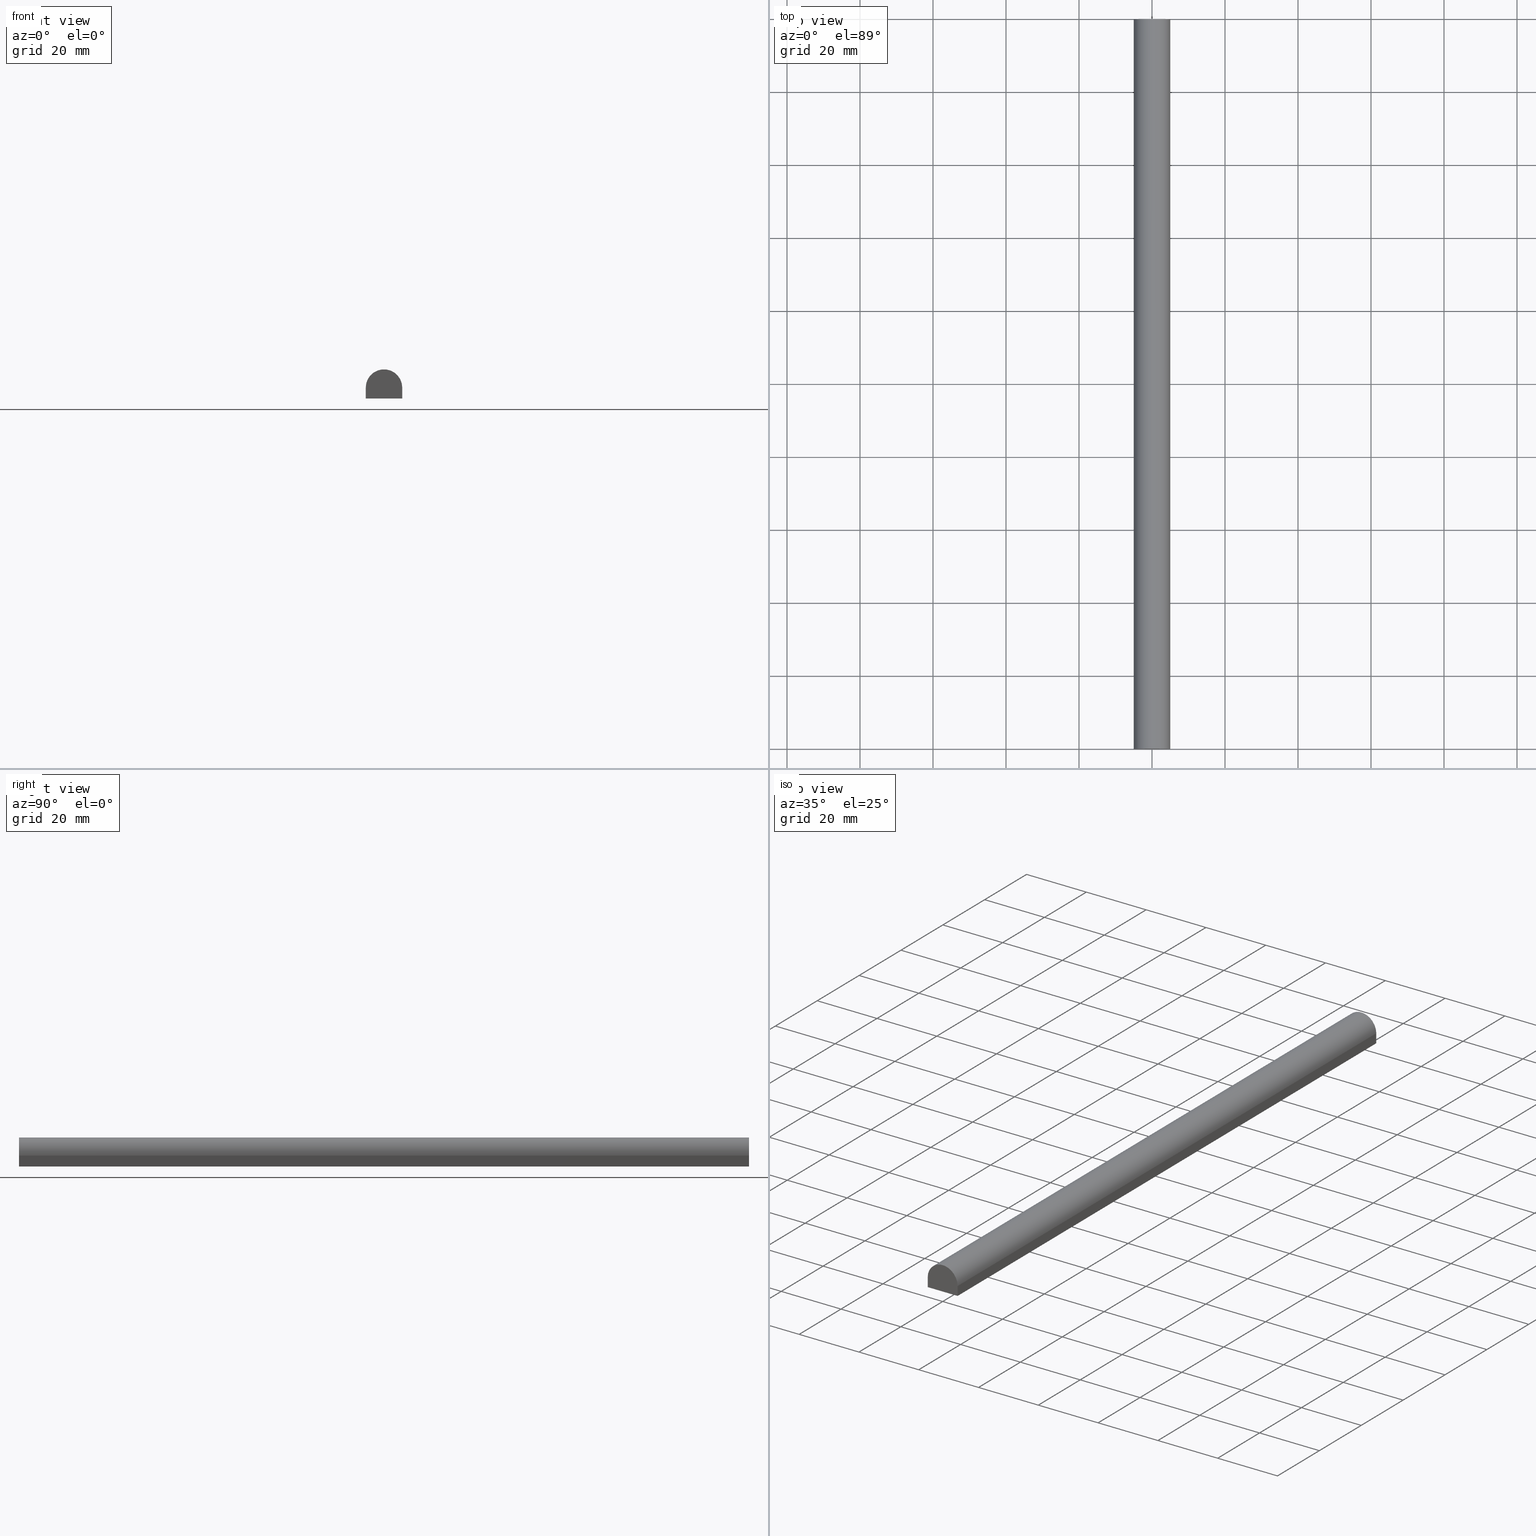
[diagram: canonical four-view strip — front | top / right | iso, engineering-drawing reading convention]
A machine part, canonical four-view strip (front | top / right | iso — engineering-drawing reading convention). The complete STEP part file that produces these views, byte-faithful:
ISO-10303-21;
HEADER;
FILE_DESCRIPTION (( 'STEP AP214' ),
    '1' );
FILE_NAME ('TM_341_3.STEP',
    '2016-05-10T02:33:44',
    ( '' ),
    ( '' ),
    'SwSTEP 2.0',
    'SolidWorks 2015',
    '' );
FILE_SCHEMA (( 'AUTOMOTIVE_DESIGN' ));
ENDSEC;

DATA;
#1 = ORIENTED_EDGE ( 'NONE', *, *, #151, .F. ) ;
#2 = ADVANCED_FACE ( 'NONE', ( #11 ), #168, .T. ) ;
#3 = AXIS2_PLACEMENT_3D ( 'NONE', #64, #158, #101 ) ;
#4 =( REPRESENTATION_RELATIONSHIP ('NONE','NONE', #48, #126 ) REPRESENTATION_RELATIONSHIP_WITH_TRANSFORMATION ( #17 )SHAPE_REPRESENTATION_RELATIONSHIP( ) );
#5 = PLANE ( 'NONE',  #154 ) ;
#6 = AXIS2_PLACEMENT_3D ( 'NONE', #142, #215, #182 ) ;
#7 = PRODUCT_DEFINITION_CONTEXT ( 'detailed design', #221, 'design' ) ;
#8 = APPLICATION_CONTEXT ( 'automotive_design' ) ;
#9 = AXIS2_PLACEMENT_3D ( 'NONE', #24, #125, #222 ) ;
#10 = PRODUCT_DEFINITION_CONTEXT ( 'detailed design', #181, 'design' ) ;
#11 = FACE_OUTER_BOUND ( 'NONE', #231, .T. ) ;
#12 =( LENGTH_UNIT ( ) NAMED_UNIT ( * ) SI_UNIT ( .MILLI., .METRE. ) );
#13 = PLANE ( 'NONE',  #3 ) ;
#14 =( NAMED_UNIT ( * ) SI_UNIT ( $, .STERADIAN. ) SOLID_ANGLE_UNIT ( ) );
#15 = LINE ( 'NONE', #214, #73 ) ;
#16 = CARTESIAN_POINT ( 'NONE',  ( 0.0000000000000000000, 1000.000000000000000, -0.9999999999999859000 ) ) ;
#17 = ITEM_DEFINED_TRANSFORMATION ( 'NONE', 'NONE', #25,  #155 ) ;
#18 = DIRECTION ( 'NONE',  ( 1.000000000000000000, 0.0000000000000000000, 0.0000000000000000000 ) ) ;
#19 = VERTEX_POINT ( 'NONE', #204 ) ;
#20 = APPLICATION_PROTOCOL_DEFINITION ( 'draft international standard', 'automotive_design', 1998, #8 ) ;
#21 = PRODUCT ( 'TM_341_3', 'TM_341_3', '', ( #212 ) ) ;
#22 = CARTESIAN_POINT ( 'NONE',  ( -5.000000000000000000, 0.0000000000000000000, 0.0000000000000000000 ) ) ;
#23 = APPLICATION_PROTOCOL_DEFINITION ( 'draft international standard', 'automotive_design', 1998, #221 ) ;
#24 = CARTESIAN_POINT ( 'NONE',  ( -5.000000000000000000, 1000.000000000000000, -0.9999999999999859000 ) ) ;
#25 = AXIS2_PLACEMENT_3D ( 'NONE', #170, #34, #184 ) ;
#26 = PLANE ( 'NONE',  #35 ) ;
#27 = VERTEX_POINT ( 'NONE', #132 ) ;
#28 = ORIENTED_EDGE ( 'NONE', *, *, #56, .F. ) ;
#29 = LINE ( 'NONE', #149, #152 ) ;
#30 = EDGE_LOOP ( 'NONE', ( #28, #76, #124, #98 ) ) ;
#31 = PRODUCT_CONTEXT ( 'NONE', #8, 'mechanical' ) ;
#32 =( GEOMETRIC_REPRESENTATION_CONTEXT ( 3 ) GLOBAL_UNCERTAINTY_ASSIGNED_CONTEXT ( ( #232 ) ) GLOBAL_UNIT_ASSIGNED_CONTEXT ( ( #44, #177, #14 ) ) REPRESENTATION_CONTEXT ( 'NONE', 'WORKASPACE' ) );
#33 = APPLICATION_PROTOCOL_DEFINITION ( 'draft international standard', 'automotive_design', 1998, #219 ) ;
#34 = DIRECTION ( 'NONE',  ( 0.0000000000000000000, 0.0000000000000000000, 1.000000000000000000 ) ) ;
#35 = AXIS2_PLACEMENT_3D ( 'NONE', #58, #145, #131 ) ;
#36 = PRESENTATION_STYLE_ASSIGNMENT (( #183 ) ) ;
#37 = CARTESIAN_POINT ( 'NONE',  ( 5.000000000000000000, 200.0000000000000000, -0.9999999999999859000 ) ) ;
#38 = CARTESIAN_POINT ( 'NONE',  ( 5.000000000000000000, 1000.000000000000000, -4.000000000000000000 ) ) ;
#39 = ADVANCED_FACE ( 'NONE', ( #147 ), #26, .T. ) ;
#40 = AXIS2_PLACEMENT_3D ( 'NONE', #162, #66, #18 ) ;
#41 = CIRCLE ( 'NONE', #240, 5.000000000000000000 ) ;
#42 = AXIS2_PLACEMENT_3D ( 'NONE', #119, #96, #211 ) ;
#43 = CARTESIAN_POINT ( 'NONE',  ( 5.000000000000000000, 0.0000000000000000000, -0.9999999999999859000 ) ) ;
#44 =( LENGTH_UNIT ( ) NAMED_UNIT ( * ) SI_UNIT ( .MILLI., .METRE. ) );
#45 = DIRECTION ( 'NONE',  ( 0.0000000000000000000, 0.0000000000000000000, -1.000000000000000000 ) ) ;
#46 = SURFACE_SIDE_STYLE ('',( #115 ) ) ;
#47 = DIRECTION ( 'NONE',  ( 0.0000000000000000000, -1.000000000000000000, 0.0000000000000000000 ) ) ;
#48 = SHAPE_REPRESENTATION ( 'TM_341_3', ( #40, #25 ), #32 ) ;
#49 = PRODUCT_DEFINITION ( 'UNKNOWN', '', #117, #10 ) ;
#50 = EDGE_LOOP ( 'NONE', ( #136, #192, #233, #174 ) ) ;
#51 = FILL_AREA_STYLE_COLOUR ( '', #230 ) ;
#52 = VECTOR ( 'NONE', #227, 1000.000000000000000 ) ;
#53 = SURFACE_STYLE_FILL_AREA ( #200 ) ;
#54 = AXIS2_PLACEMENT_3D ( 'NONE', #16, #67, #45 ) ;
#55 = DIRECTION ( 'NONE',  ( 1.000000000000000000, -0.0000000000000000000, -0.0000000000000000000 ) ) ;
#56 = EDGE_CURVE ( 'NONE', #27, #129, #143, .T. ) ;
#57 = ORIENTED_EDGE ( 'NONE', *, *, #109, .F. ) ;
#58 = CARTESIAN_POINT ( 'NONE',  ( 0.0000000000000000000, 200.0000000000000000, 0.0000000000000000000 ) ) ;
#59 = VECTOR ( 'NONE', #197, 1000.000000000000000 ) ;
#60 = FACE_OUTER_BOUND ( 'NONE', #30, .T. ) ;
#61 = EDGE_CURVE ( 'NONE', #150, #19, #29, .T. ) ;
#62 = CARTESIAN_POINT ( 'NONE',  ( 5.000000000000000000, 200.0000000000000000, 0.0000000000000000000 ) ) ;
#63 = LINE ( 'NONE', #171, #71 ) ;
#64 = CARTESIAN_POINT ( 'NONE',  ( 0.0000000000000000000, 0.0000000000000000000, 0.0000000000000000000 ) ) ;
#65 = EDGE_CURVE ( 'NONE', #150, #68, #157, .T. ) ;
#66 = DIRECTION ( 'NONE',  ( 0.0000000000000000000, 0.0000000000000000000, 1.000000000000000000 ) ) ;
#67 = DIRECTION ( 'NONE',  ( 0.0000000000000000000, -1.000000000000000000, 0.0000000000000000000 ) ) ;
#68 = VERTEX_POINT ( 'NONE', #226 ) ;
#69 = CARTESIAN_POINT ( 'NONE',  ( -5.000000000000000000, 1000.000000000000000, -4.000000000000000000 ) ) ;
#70 = VERTEX_POINT ( 'NONE', #90 ) ;
#71 = VECTOR ( 'NONE', #82, 1000.000000000000000 ) ;
#72 = ORIENTED_EDGE ( 'NONE', *, *, #173, .T. ) ;
#73 = VECTOR ( 'NONE', #237, 1000.000000000000000 ) ;
#74 = PRODUCT_DEFINITION ( 'UNKNOWN', '', #89, #7 ) ;
#75 = VERTEX_POINT ( 'NONE', #37 ) ;
#76 = ORIENTED_EDGE ( 'NONE', *, *, #112, .F. ) ;
#77 =( LENGTH_UNIT ( ) NAMED_UNIT ( * ) SI_UNIT ( .MILLI., .METRE. ) );
#78 = STYLED_ITEM ( 'NONE', ( #169 ), #218 ) ;
#79 = LINE ( 'NONE', #62, #107 ) ;
#80 =( NAMED_UNIT ( * ) PLANE_ANGLE_UNIT ( ) SI_UNIT ( $, .RADIAN. ) );
#81 = CARTESIAN_POINT ( 'NONE',  ( -5.000000000000000000, 200.0000000000000000, -0.9999999999999850100 ) ) ;
#82 = DIRECTION ( 'NONE',  ( -0.0000000000000000000, -0.0000000000000000000, -1.000000000000000000 ) ) ;
#83 = ORIENTED_EDGE ( 'NONE', *, *, #56, .T. ) ;
#84 = CARTESIAN_POINT ( 'NONE',  ( 0.0000000000000000000, 0.0000000000000000000, 0.0000000000000000000 ) ) ;
#85 = EDGE_CURVE ( 'NONE', #75, #209, #41, .T. ) ;
#86 =( NAMED_UNIT ( * ) SI_UNIT ( $, .STERADIAN. ) SOLID_ANGLE_UNIT ( ) );
#87 = VECTOR ( 'NONE', #141, 1000.000000000000000 ) ;
#88 =( LENGTH_UNIT ( ) NAMED_UNIT ( * ) SI_UNIT ( .MILLI., .METRE. ) );
#89 = PRODUCT_DEFINITION_FORMATION_WITH_SPECIFIED_SOURCE ( 'ANY', '', #21, .NOT_KNOWN. ) ;
#90 = CARTESIAN_POINT ( 'NONE',  ( -5.000000000000000000, 0.0000000000000000000, -0.9999999999999850100 ) ) ;
#91 = CARTESIAN_POINT ( 'NONE',  ( -5.000000000000000000, 200.0000000000000000, -4.000000000000000000 ) ) ;
#92 = FACE_OUTER_BOUND ( 'NONE', #235, .T. ) ;
#93 = AXIS2_PLACEMENT_3D ( 'NONE', #69, #108, #153 ) ;
#94 = EDGE_CURVE ( 'NONE', #209, #70, #239, .T. ) ;
#95 = ADVANCED_FACE ( 'NONE', ( #60 ), #5, .T. ) ;
#96 = DIRECTION ( 'NONE',  ( -0.0000000000000000000, -1.000000000000000000, -0.0000000000000000000 ) ) ;
#97 = PRODUCT_RELATED_PRODUCT_CATEGORY ( 'part', '', ( #21 ) ) ;
#98 = ORIENTED_EDGE ( 'NONE', *, *, #100, .T. ) ;
#99 = LINE ( 'NONE', #22, #228 ) ;
#100 = EDGE_CURVE ( 'NONE', #75, #129, #186, .T. ) ;
#101 = DIRECTION ( 'NONE',  ( 1.000000000000000000, 0.0000000000000000000, 0.0000000000000000000 ) ) ;
#102 = CARTESIAN_POINT ( 'NONE',  ( -5.000000000000000000, 1000.000000000000000, -4.000000000000000000 ) ) ;
#103 =( NAMED_UNIT ( * ) SI_UNIT ( $, .STERADIAN. ) SOLID_ANGLE_UNIT ( ) );
#104 = SHAPE_REPRESENTATION_RELATIONSHIP ( 'NONE' , 'NONE' ,  #126, #225 ) ;
#105 = UNCERTAINTY_MEASURE_WITH_UNIT (LENGTH_MEASURE( 1.000000000000000100E-005 ), #88, 'distance_accuracy_value', 'NONE');
#106 = PRESENTATION_LAYER_ASSIGNMENT (  '', '', ( #78 ) ) ;
#107 = VECTOR ( 'NONE', #185, 1000.000000000000000 ) ;
#108 = DIRECTION ( 'NONE',  ( 0.0000000000000000000, 0.0000000000000000000, -1.000000000000000000 ) ) ;
#109 = EDGE_CURVE ( 'NONE', #68, #27, #159, .T. ) ;
#110 = PRODUCT_DEFINITION_SHAPE ( 'NONE', 'NONE',  #74 ) ;
#111 = CONTEXT_DEPENDENT_SHAPE_REPRESENTATION ( #4, #193 ) ;
#112 = EDGE_CURVE ( 'NONE', #19, #27, #15, .T. ) ;
#113 = FACE_OUTER_BOUND ( 'NONE', #133, .T. ) ;
#114 = DIRECTION ( 'NONE',  ( 1.000000000000000000, 0.0000000000000000000, 0.0000000000000000000 ) ) ;
#115 = SURFACE_STYLE_FILL_AREA ( #160 ) ;
#116 = ADVANCED_FACE ( 'NONE', ( #92 ), #13, .F. ) ;
#117 = PRODUCT_DEFINITION_FORMATION_WITH_SPECIFIED_SOURCE ( 'ANY', '', #234, .NOT_KNOWN. ) ;
#118 = EDGE_LOOP ( 'NONE', ( #139, #202, #161, #1 ) ) ;
#119 = CARTESIAN_POINT ( 'NONE',  ( 0.0000000000000000000, 0.0000000000000000000, -0.9999999999999859000 ) ) ;
#120 = MECHANICAL_DESIGN_GEOMETRIC_PRESENTATION_REPRESENTATION (  '', ( #78 ), #135 ) ;
#121 = CARTESIAN_POINT ( 'NONE',  ( 0.0000000000000000000, 0.0000000000000000000, -4.000000000000000000 ) ) ;
#122 = ADVANCED_FACE ( 'NONE', ( #178 ), #134, .T. ) ;
#123 = PLANE ( 'NONE',  #93 ) ;
#124 = ORIENTED_EDGE ( 'NONE', *, *, #151, .T. ) ;
#125 = DIRECTION ( 'NONE',  ( -1.000000000000000000, 0.0000000000000000000, 0.0000000000000000000 ) ) ;
#126 = SHAPE_REPRESENTATION ( 'rubber foam', ( #155 ), #144 ) ;
#127 = SURFACE_STYLE_USAGE ( .BOTH. , #46 ) ;
#128 = CARTESIAN_POINT ( 'NONE',  ( 5.000000000000000000, 0.0000000000000000000, 0.0000000000000000000 ) ) ;
#129 = VERTEX_POINT ( 'NONE', #43 ) ;
#130 = PRODUCT_RELATED_PRODUCT_CATEGORY ( 'part', '', ( #234 ) ) ;
#131 = DIRECTION ( 'NONE',  ( 1.000000000000000000, 0.0000000000000000000, 0.0000000000000000000 ) ) ;
#132 = CARTESIAN_POINT ( 'NONE',  ( 5.000000000000000000, 0.0000000000000000000, -4.000000000000000000 ) ) ;
#133 = EDGE_LOOP ( 'NONE', ( #57, #196, #156, #223 ) ) ;
#134 = CYLINDRICAL_SURFACE ( 'NONE', #54, 5.000000000000000000 ) ;
#135 =( GEOMETRIC_REPRESENTATION_CONTEXT ( 3 ) GLOBAL_UNCERTAINTY_ASSIGNED_CONTEXT ( ( #105 ) ) GLOBAL_UNIT_ASSIGNED_CONTEXT ( ( #88, #164, #103 ) ) REPRESENTATION_CONTEXT ( 'NONE', 'WORKASPACE' ) );
#136 = ORIENTED_EDGE ( 'NONE', *, *, #173, .F. ) ;
#137 = ORIENTED_EDGE ( 'NONE', *, *, #216, .T. ) ;
#138 = EDGE_CURVE ( 'NONE', #70, #68, #99, .T. ) ;
#139 = ORIENTED_EDGE ( 'NONE', *, *, #61, .F. ) ;
#140 = UNCERTAINTY_MEASURE_WITH_UNIT (LENGTH_MEASURE( 1.000000000000000100E-005 ), #77, 'distance_accuracy_value', 'NONE');
#141 = DIRECTION ( 'NONE',  ( 0.0000000000000000000, -1.000000000000000000, 0.0000000000000000000 ) ) ;
#142 = CARTESIAN_POINT ( 'NONE',  ( 0.0000000000000000000, 0.0000000000000000000, 0.0000000000000000000 ) ) ;
#143 = LINE ( 'NONE', #128, #52 ) ;
#144 =( GEOMETRIC_REPRESENTATION_CONTEXT ( 3 ) GLOBAL_UNCERTAINTY_ASSIGNED_CONTEXT ( ( #165 ) ) GLOBAL_UNIT_ASSIGNED_CONTEXT ( ( #12, #191, #207 ) ) REPRESENTATION_CONTEXT ( 'NONE', 'WORKASPACE' ) );
#145 = DIRECTION ( 'NONE',  ( -0.0000000000000000000, 1.000000000000000000, 0.0000000000000000000 ) ) ;
#146 = VECTOR ( 'NONE', #187, 1000.000000000000000 ) ;
#147 = FACE_OUTER_BOUND ( 'NONE', #118, .T. ) ;
#148 = SHAPE_DEFINITION_REPRESENTATION ( #110, #48 ) ;
#149 = CARTESIAN_POINT ( 'NONE',  ( 0.0000000000000000000, 200.0000000000000000, -4.000000000000000000 ) ) ;
#150 = VERTEX_POINT ( 'NONE', #91 ) ;
#151 = EDGE_CURVE ( 'NONE', #19, #75, #79, .T. ) ;
#152 = VECTOR ( 'NONE', #55, 1000.000000000000000 ) ;
#153 = DIRECTION ( 'NONE',  ( -1.000000000000000000, 0.0000000000000000000, 0.0000000000000000000 ) ) ;
#154 = AXIS2_PLACEMENT_3D ( 'NONE', #38, #114, #198 ) ;
#155 = AXIS2_PLACEMENT_3D ( 'NONE', #84, #201, #179 ) ;
#156 = ORIENTED_EDGE ( 'NONE', *, *, #61, .T. ) ;
#157 = LINE ( 'NONE', #102, #146 ) ;
#158 = DIRECTION ( 'NONE',  ( -0.0000000000000000000, 1.000000000000000000, 0.0000000000000000000 ) ) ;
#159 = LINE ( 'NONE', #121, #59 ) ;
#160 = FILL_AREA_STYLE ('',( #236 ) ) ;
#161 = ORIENTED_EDGE ( 'NONE', *, *, #85, .F. ) ;
#162 = CARTESIAN_POINT ( 'NONE',  ( 0.0000000000000000000, 0.0000000000000000000, 0.0000000000000000000 ) ) ;
#163 = APPLICATION_PROTOCOL_DEFINITION ( 'draft international standard', 'automotive_design', 1998, #181 ) ;
#164 =( NAMED_UNIT ( * ) PLANE_ANGLE_UNIT ( ) SI_UNIT ( $, .RADIAN. ) );
#165 = UNCERTAINTY_MEASURE_WITH_UNIT (LENGTH_MEASURE( 1.000000000000000100E-005 ), #12, 'distance_accuracy_value', 'NONE');
#166 = DIRECTION ( 'NONE',  ( 0.0000000000000000000, 0.0000000000000000000, 1.000000000000000000 ) ) ;
#167 = ORIENTED_EDGE ( 'NONE', *, *, #65, .T. ) ;
#168 = PLANE ( 'NONE',  #9 ) ;
#169 = PRESENTATION_STYLE_ASSIGNMENT (( #127 ) ) ;
#170 = CARTESIAN_POINT ( 'NONE',  ( 0.0000000000000000000, 0.0000000000000000000, 0.0000000000000000000 ) ) ;
#171 = CARTESIAN_POINT ( 'NONE',  ( -5.000000000000000000, 200.0000000000000000, 0.0000000000000000000 ) ) ;
#172 = STYLED_ITEM ( 'NONE', ( #36 ), #225 ) ;
#173 = EDGE_CURVE ( 'NONE', #129, #70, #210, .T. ) ;
#174 = ORIENTED_EDGE ( 'NONE', *, *, #94, .T. ) ;
#175 = VECTOR ( 'NONE', #47, 1000.000000000000000 ) ;
#176 = ORIENTED_EDGE ( 'NONE', *, *, #138, .T. ) ;
#177 =( NAMED_UNIT ( * ) PLANE_ANGLE_UNIT ( ) SI_UNIT ( $, .RADIAN. ) );
#178 = FACE_OUTER_BOUND ( 'NONE', #50, .T. ) ;
#179 = DIRECTION ( 'NONE',  ( 1.000000000000000000, 0.0000000000000000000, 0.0000000000000000000 ) ) ;
#180 = ORIENTED_EDGE ( 'NONE', *, *, #138, .F. ) ;
#181 = APPLICATION_CONTEXT ( 'automotive_design' ) ;
#182 = DIRECTION ( 'NONE',  ( 1.000000000000000000, 0.0000000000000000000, 0.0000000000000000000 ) ) ;
#183 = SURFACE_STYLE_USAGE ( .BOTH. , #238 ) ;
#184 = DIRECTION ( 'NONE',  ( 1.000000000000000000, 0.0000000000000000000, 0.0000000000000000000 ) ) ;
#185 = DIRECTION ( 'NONE',  ( -0.0000000000000000000, -0.0000000000000000000, 1.000000000000000000 ) ) ;
#186 = LINE ( 'NONE', #220, #87 ) ;
#187 = DIRECTION ( 'NONE',  ( 0.0000000000000000000, -1.000000000000000000, 0.0000000000000000000 ) ) ;
#188 = PRESENTATION_LAYER_ASSIGNMENT (  '', '', ( #172 ) ) ;
#189 = ORIENTED_EDGE ( 'NONE', *, *, #94, .F. ) ;
#190 = CLOSED_SHELL ( 'NONE', ( #199, #95, #122, #2, #39, #116 ) ) ;
#191 =( NAMED_UNIT ( * ) PLANE_ANGLE_UNIT ( ) SI_UNIT ( $, .RADIAN. ) );
#192 = ORIENTED_EDGE ( 'NONE', *, *, #100, .F. ) ;
#193 = PRODUCT_DEFINITION_SHAPE ( 'NONE', 'NONE',  #241 ) ;
#194 = SHAPE_DEFINITION_REPRESENTATION ( #217, #126 ) ;
#195 = MECHANICAL_DESIGN_GEOMETRIC_PRESENTATION_REPRESENTATION (  '', ( #172 ), #208 ) ;
#196 = ORIENTED_EDGE ( 'NONE', *, *, #65, .F. ) ;
#197 = DIRECTION ( 'NONE',  ( 1.000000000000000000, -0.0000000000000000000, -0.0000000000000000000 ) ) ;
#198 = DIRECTION ( 'NONE',  ( 0.0000000000000000000, 0.0000000000000000000, -1.000000000000000000 ) ) ;
#199 = ADVANCED_FACE ( 'NONE', ( #113 ), #123, .T. ) ;
#200 = FILL_AREA_STYLE ('',( #51 ) ) ;
#201 = DIRECTION ( 'NONE',  ( 0.0000000000000000000, 0.0000000000000000000, 1.000000000000000000 ) ) ;
#202 = ORIENTED_EDGE ( 'NONE', *, *, #216, .F. ) ;
#203 = DIRECTION ( 'NONE',  ( -0.0000000000000000000, -0.0000000000000000000, -1.000000000000000000 ) ) ;
#204 = CARTESIAN_POINT ( 'NONE',  ( 5.000000000000000000, 200.0000000000000000, -4.000000000000000000 ) ) ;
#205 = CARTESIAN_POINT ( 'NONE',  ( 0.0000000000000000000, 200.0000000000000000, -0.9999999999999859000 ) ) ;
#206 = CARTESIAN_POINT ( 'NONE',  ( -5.000000000000000000, 1000.000000000000000, -0.9999999999999850100 ) ) ;
#207 =( NAMED_UNIT ( * ) SI_UNIT ( $, .STERADIAN. ) SOLID_ANGLE_UNIT ( ) );
#208 =( GEOMETRIC_REPRESENTATION_CONTEXT ( 3 ) GLOBAL_UNCERTAINTY_ASSIGNED_CONTEXT ( ( #140 ) ) GLOBAL_UNIT_ASSIGNED_CONTEXT ( ( #77, #80, #86 ) ) REPRESENTATION_CONTEXT ( 'NONE', 'WORKASPACE' ) );
#209 = VERTEX_POINT ( 'NONE', #81 ) ;
#210 = CIRCLE ( 'NONE', #42, 5.000000000000000000 ) ;
#211 = DIRECTION ( 'NONE',  ( 0.0000000000000000000, 0.0000000000000000000, 1.000000000000000000 ) ) ;
#212 = PRODUCT_CONTEXT ( 'NONE', #219, 'mechanical' ) ;
#213 = ORIENTED_EDGE ( 'NONE', *, *, #109, .T. ) ;
#214 = CARTESIAN_POINT ( 'NONE',  ( 5.000000000000000000, 1000.000000000000000, -4.000000000000000000 ) ) ;
#215 = DIRECTION ( 'NONE',  ( 0.0000000000000000000, 0.0000000000000000000, 1.000000000000000000 ) ) ;
#216 = EDGE_CURVE ( 'NONE', #209, #150, #63, .T. ) ;
#217 = PRODUCT_DEFINITION_SHAPE ( 'NONE', 'NONE',  #49 ) ;
#218 = MANIFOLD_SOLID_BREP ( '���߰�1', #190 ) ;
#219 = APPLICATION_CONTEXT ( 'automotive_design' ) ;
#220 = CARTESIAN_POINT ( 'NONE',  ( 5.000000000000000000, 1000.000000000000000, -0.9999999999999859000 ) ) ;
#221 = APPLICATION_CONTEXT ( 'automotive_design' ) ;
#222 = DIRECTION ( 'NONE',  ( 0.0000000000000000000, 0.0000000000000000000, 1.000000000000000000 ) ) ;
#223 = ORIENTED_EDGE ( 'NONE', *, *, #112, .T. ) ;
#224 = DIRECTION ( 'NONE',  ( -0.0000000000000000000, -1.000000000000000000, -0.0000000000000000000 ) ) ;
#225 = ADVANCED_BREP_SHAPE_REPRESENTATION ( '', ( #218, #155 ), #144 ) ;
#226 = CARTESIAN_POINT ( 'NONE',  ( -5.000000000000000000, 0.0000000000000000000, -4.000000000000000000 ) ) ;
#227 = DIRECTION ( 'NONE',  ( -0.0000000000000000000, -0.0000000000000000000, 1.000000000000000000 ) ) ;
#228 = VECTOR ( 'NONE', #203, 1000.000000000000000 ) ;
#229 = COLOUR_RGB ( '',0.7921568627450980000, 0.8196078431372548800, 0.9333333333333333500 ) ;
#230 = COLOUR_RGB ( '',0.7921568627450980000, 0.8196078431372548800, 0.9333333333333333500 ) ;
#231 = EDGE_LOOP ( 'NONE', ( #180, #189, #137, #167 ) ) ;
#232 = UNCERTAINTY_MEASURE_WITH_UNIT (LENGTH_MEASURE( 1.000000000000000100E-005 ), #44, 'distance_accuracy_value', 'NONE');
#233 = ORIENTED_EDGE ( 'NONE', *, *, #85, .T. ) ;
#234 = PRODUCT ( 'rubber foam', 'rubber foam', '', ( #31 ) ) ;
#235 = EDGE_LOOP ( 'NONE', ( #213, #83, #72, #176 ) ) ;
#236 = FILL_AREA_STYLE_COLOUR ( '', #229 ) ;
#237 = DIRECTION ( 'NONE',  ( 0.0000000000000000000, -1.000000000000000000, 0.0000000000000000000 ) ) ;
#238 = SURFACE_SIDE_STYLE ('',( #53 ) ) ;
#239 = LINE ( 'NONE', #206, #175 ) ;
#240 = AXIS2_PLACEMENT_3D ( 'NONE', #205, #224, #166 ) ;
#241 = NEXT_ASSEMBLY_USAGE_OCCURRENCE ( 'NAUO1', ' ', ' ', #74, #49, $ ) ;
ENDSEC;
END-ISO-10303-21;
